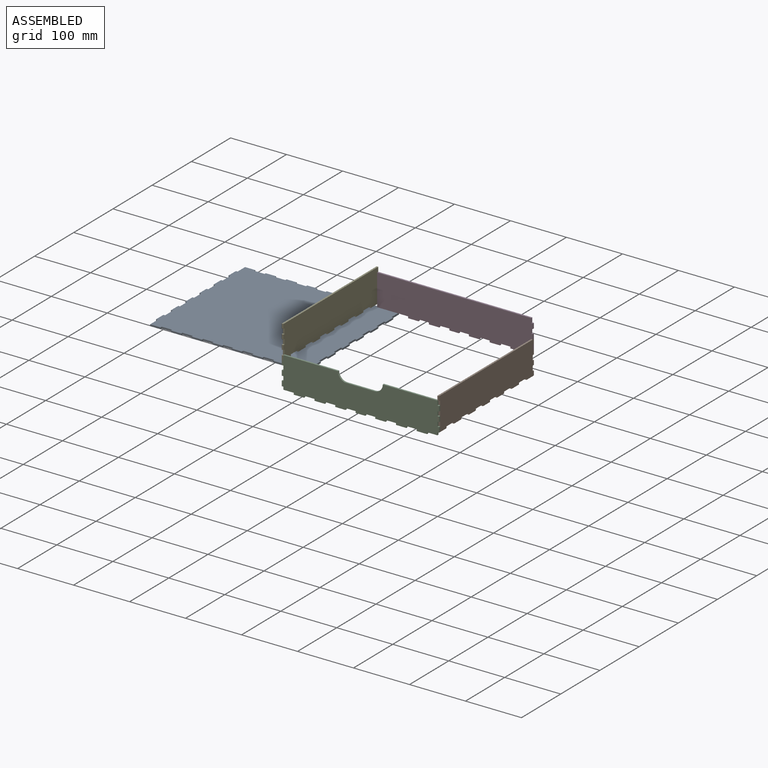
[diagram: assembled view]
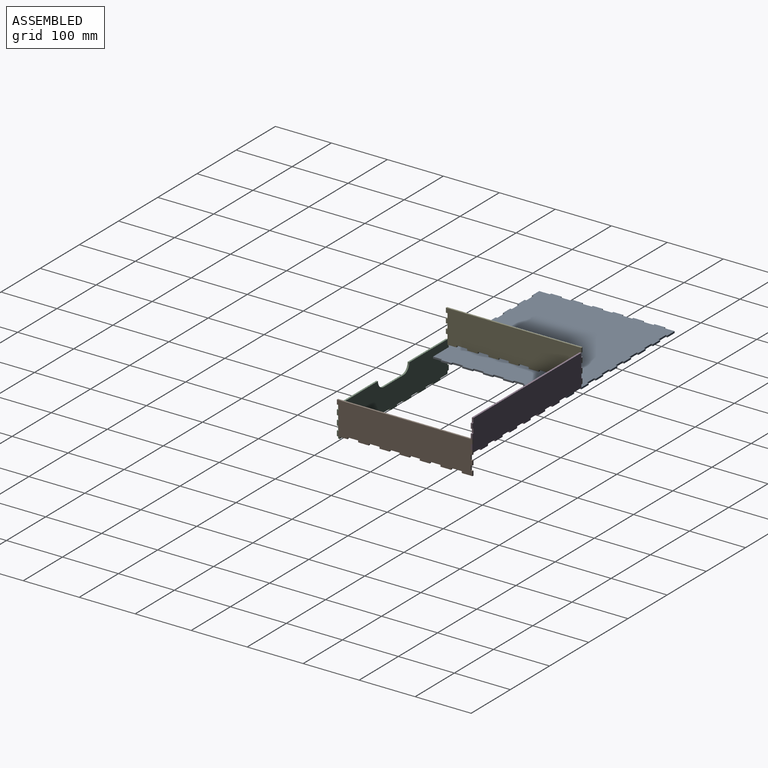
[diagram: assembled view, second angle]
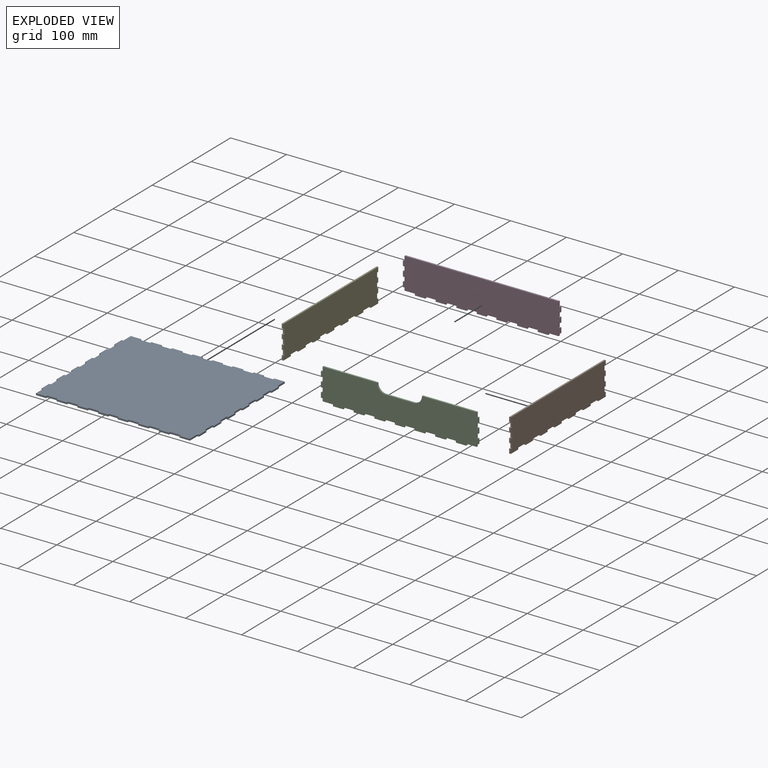
[diagram: exploded view]
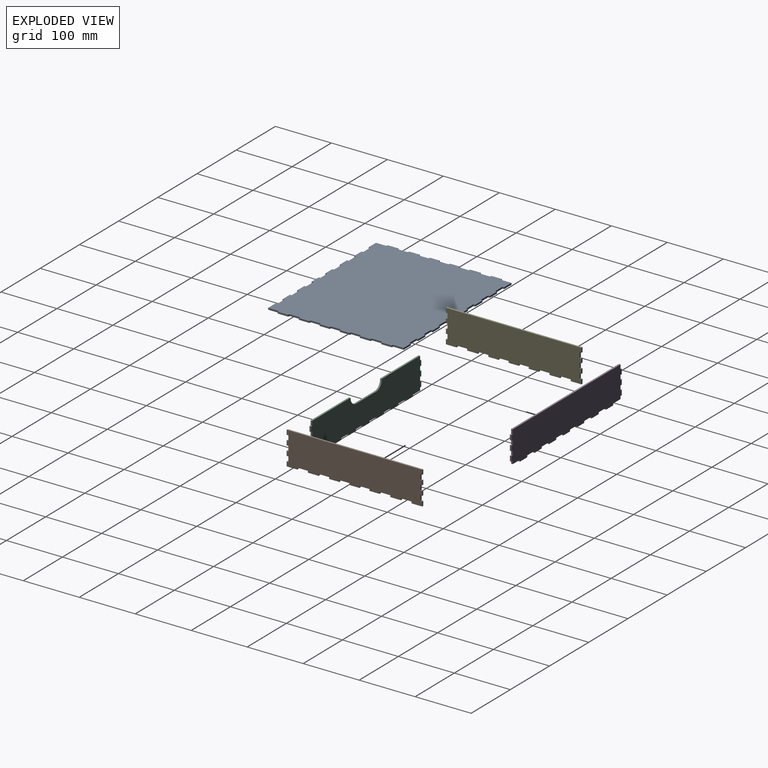
[diagram: exploded view, second angle]
ASSEMBLY  parts=5 mates=3
PART A: 110 faces, bbox 281x242x3 mm
  f0: plane 19x3mm, normal (-1,0,0), area 57mm2, adj f1,f107,f108,f109
  f1: plane 3x3mm, normal (0,1,0), area 9mm2, adj f0,f2,f108,f109
  f2: plane 19x3mm, normal (-1,0,0), area 57mm2, adj f1,f3,f108,f109
  f3: plane 3x3mm, normal (0,-1,0), area 9mm2, adj f2,f4,f108,f109
  f4: plane 19x3mm, normal (-1,0,0), area 57mm2, adj f3,f5,f108,f109
  f5: plane 3x3mm, normal (0,1,0), area 9mm2, adj f4,f6,f108,f109
  f6: plane 19x3mm, normal (-1,0,0), area 57mm2, adj f5,f7,f108,f109
  f7: plane 3x3mm, normal (0,-1,0), area 9mm2, adj f6,f8,f108,f109
  f8: plane 18x3mm, normal (-1,0,0), area 54mm2, adj f7,f9,f108,f109
  f9: plane 3x3mm, normal (0,1,0), area 9mm2, adj f8,f10,f108,f109
  f10: plane 18x3mm, normal (-1,0,0), area 54mm2, adj f9,f11,f108,f109
  f11: plane 3x3mm, normal (0,-1,0), area 9mm2, adj f10,f12,f108,f109
  f12: plane 18x3mm, normal (-1,0,0), area 54mm2, adj f11,f13,f108,f109
  f13: plane 3x3mm, normal (0,1,0), area 9mm2, adj f12,f14,f108,f109
  f14: plane 18x3mm, normal (-1,0,0), area 54mm2, adj f13,f15,f108,f109
  f15: plane 3x3mm, normal (0,-1,0), area 9mm2, adj f14,f16,f108,f109
  f16: plane 18x3mm, normal (-1,0,0), area 54mm2, adj f15,f17,f108,f109
  f17: plane 3x3mm, normal (0,1,0), area 9mm2, adj f16,f18,f108,f109
  f18: plane 19x3mm, normal (-1,0,0), area 57mm2, adj f17,f19,f108,f109
  f19: plane 3x3mm, normal (0,-1,0), area 9mm2, adj f18,f20,f108,f109
  f20: plane 19x3mm, normal (-1,0,0), area 57mm2, adj f19,f21,f108,f109
  f21: plane 3x3mm, normal (0,1,0), area 9mm2, adj f20,f22,f108,f109
  f22: plane 19x3mm, normal (-1,0,0), area 57mm2, adj f21,f23,f108,f109
  f23: plane 3x3mm, normal (0,-1,0), area 9mm2, adj f22,f24,f108,f109
  f24: plane 19x3mm, normal (-1,0,0), area 57mm2, adj f23,f25,f108,f109
  f25: plane 18.5x3mm, normal (0,-1,0), area 55.5mm2, adj f24,f26,f108,f109
  f26: plane 3x3mm, normal (1,0,0), area 9mm2, adj f25,f27,f108,f109
  f27: plane 18.5x3mm, normal (0,-1,0), area 55.5mm2, adj f26,f28,f108,f109
  f28: plane 3x3mm, normal (-1,0,0), area 9mm2, adj f27,f29,f108,f109
  f29: plane 18.5x3mm, normal (0,-1,0), area 55.5mm2, adj f28,f30,f108,f109
  f30: plane 3x3mm, normal (1,0,0), area 9mm2, adj f29,f31,f108,f109
  f31: plane 18.5x3mm, normal (0,-1,0), area 55.5mm2, adj f30,f32,f108,f109
  f32: plane 3x3mm, normal (-1,0,0), area 9mm2, adj f31,f33,f108,f109
  f33: plane 18.5x3mm, normal (0,-1,0), area 55.5mm2, adj f32,f34,f108,f109
  f34: plane 3x3mm, normal (1,0,0), area 9mm2, adj f33,f35,f108,f109
  f35: plane 18.5x3mm, normal (0,-1,0), area 55.5mm2, adj f34,f36,f108,f109
  f36: plane 3x3mm, normal (-1,0,0), area 9mm2, adj f35,f37,f108,f109
  f37: plane 18x3mm, normal (0,-1,0), area 54mm2, adj f36,f38,f108,f109
  f38: plane 3x3mm, normal (1,0,0), area 9mm2, adj f37,f39,f108,f109
  f39: plane 17x3mm, normal (0,-1,0), area 51mm2, adj f38,f40,f108,f109
  f40: plane 3x3mm, normal (-1,0,0), area 9mm2, adj f39,f41,f108,f109
  f41: plane 18x3mm, normal (0,-1,0), area 54mm2, adj f40,f42,f108,f109
  f42: plane 3x3mm, normal (1,0,0), area 9mm2, adj f41,f43,f108,f109
  f43: plane 18.5x3mm, normal (0,-1,0), area 55.5mm2, adj f42,f44,f108,f109
  f44: plane 3x3mm, normal (-1,0,0), area 9mm2, adj f43,f45,f108,f109
  f45: plane 18.5x3mm, normal (0,-1,0), area 55.5mm2, adj f44,f46,f108,f109
  f46: plane 3x3mm, normal (1,0,0), area 9mm2, adj f45,f47,f108,f109
  f47: plane 18.5x3mm, normal (0,-1,0), area 55.5mm2, adj f46,f48,f108,f109
  f48: plane 3x3mm, normal (-1,0,0), area 9mm2, adj f47,f49,f108,f109
  f49: plane 18.5x3mm, normal (0,-1,0), area 55.5mm2, adj f48,f50,f108,f109
  f50: plane 3x3mm, normal (1,0,0), area 9mm2, adj f49,f51,f108,f109
  f51: plane 18.5x3mm, normal (0,-1,0), area 55.5mm2, adj f50,f52,f108,f109
  f52: plane 3x3mm, normal (-1,0,0), area 9mm2, adj f51,f53,f108,f109
  f53: plane 18.5x3mm, normal (0,-1,0), area 55.5mm2, adj f52,f54,f108,f109
  f54: plane 19x3mm, normal (1,0,0), area 57mm2, adj f53,f55,f108,f109
  f55: plane 3x3mm, normal (0,-1,0), area 9mm2, adj f54,f56,f108,f109
  f56: plane 19x3mm, normal (1,0,0), area 57mm2, adj f55,f57,f108,f109
  f57: plane 3x3mm, normal (0,1,0), area 9mm2, adj f56,f58,f108,f109
  f58: plane 19x3mm, normal (1,0,0), area 57mm2, adj f57,f59,f108,f109
  f59: plane 3x3mm, normal (0,-1,0), area 9mm2, adj f58,f60,f108,f109
  f60: plane 19x3mm, normal (1,0,0), area 57mm2, adj f59,f61,f108,f109
  f61: plane 3x3mm, normal (0,1,0), area 9mm2, adj f60,f62,f108,f109
  f62: plane 18x3mm, normal (1,0,0), area 54mm2, adj f61,f63,f108,f109
  f63: plane 3x3mm, normal (0,-1,0), area 9mm2, adj f62,f64,f108,f109
  f64: plane 18x3mm, normal (1,0,0), area 54mm2, adj f63,f65,f108,f109
  f65: plane 3x3mm, normal (0,1,0), area 9mm2, adj f64,f66,f108,f109
  f66: plane 18x3mm, normal (1,0,0), area 54mm2, adj f65,f67,f108,f109
  f67: plane 3x3mm, normal (0,-1,0), area 9mm2, adj f66,f68,f108,f109
  f68: plane 18x3mm, normal (1,0,0), area 54mm2, adj f67,f69,f108,f109
  f69: plane 3x3mm, normal (0,1,0), area 9mm2, adj f68,f70,f108,f109
  f70: plane 18x3mm, normal (1,0,0), area 54mm2, adj f69,f71,f108,f109
  f71: plane 3x3mm, normal (0,-1,0), area 9mm2, adj f70,f72,f108,f109
  f72: plane 19x3mm, normal (1,0,0), area 57mm2, adj f71,f73,f108,f109
  f73: plane 3x3mm, normal (0,1,0), area 9mm2, adj f72,f74,f108,f109
  f74: plane 19x3mm, normal (1,0,0), area 57mm2, adj f73,f75,f108,f109
  f75: plane 3x3mm, normal (0,-1,0), area 9mm2, adj f74,f76,f108,f109
  f76: plane 19x3mm, normal (1,0,0), area 57mm2, adj f75,f77,f108,f109
  f77: plane 3x3mm, normal (0,1,0), area 9mm2, adj f76,f78,f108,f109
  f78: plane 19x3mm, normal (1,0,0), area 57mm2, adj f77,f79,f108,f109
  f79: plane 18.5x3mm, normal (0,1,0), area 55.5mm2, adj f78,f80,f108,f109
  f80: plane 3x3mm, normal (-1,0,0), area 9mm2, adj f79,f81,f108,f109
  f81: plane 18.5x3mm, normal (0,1,0), area 55.5mm2, adj f80,f82,f108,f109
  f82: plane 3x3mm, normal (1,0,0), area 9mm2, adj f81,f83,f108,f109
  f83: plane 18.5x3mm, normal (0,1,0), area 55.5mm2, adj f82,f84,f108,f109
  f84: plane 3x3mm, normal (-1,0,0), area 9mm2, adj f83,f85,f108,f109
  f85: plane 18.5x3mm, normal (0,1,0), area 55.5mm2, adj f84,f86,f108,f109
  f86: plane 3x3mm, normal (1,0,0), area 9mm2, adj f85,f87,f108,f109
  f87: plane 18.5x3mm, normal (0,1,0), area 55.5mm2, adj f86,f88,f108,f109
  f88: plane 3x3mm, normal (-1,0,0), area 9mm2, adj f87,f89,f108,f109
  f89: plane 18.5x3mm, normal (0,1,0), area 55.5mm2, adj f88,f90,f108,f109
  f90: plane 3x3mm, normal (1,0,0), area 9mm2, adj f89,f91,f108,f109
  f91: plane 18x3mm, normal (0,1,0), area 54mm2, adj f90,f92,f108,f109
  f92: plane 3x3mm, normal (-1,0,0), area 9mm2, adj f91,f93,f108,f109
  f93: plane 17x3mm, normal (0,1,0), area 51mm2, adj f92,f94,f108,f109
  f94: plane 3x3mm, normal (1,0,0), area 9mm2, adj f93,f95,f108,f109
  f95: plane 18x3mm, normal (0,1,0), area 54mm2, adj f94,f96,f108,f109
  f96: plane 3x3mm, normal (-1,0,0), area 9mm2, adj f95,f97,f108,f109
  f97: plane 18.5x3mm, normal (0,1,0), area 55.5mm2, adj f96,f98,f108,f109
  f98: plane 3x3mm, normal (1,0,0), area 9mm2, adj f97,f99,f108,f109
  f99: plane 18.5x3mm, normal (0,1,0), area 55.5mm2, adj f98,f100,f108,f109
  f100: plane 3x3mm, normal (-1,0,0), area 9mm2, adj f99,f101,f108,f109
  f101: plane 18.5x3mm, normal (0,1,0), area 55.5mm2, adj f100,f102,f108,f109
  f102: plane 3x3mm, normal (1,0,0), area 9mm2, adj f101,f103,f108,f109
  f103: plane 18.5x3mm, normal (0,1,0), area 55.5mm2, adj f102,f104,f108,f109
  f104: plane 3x3mm, normal (-1,0,0), area 9mm2, adj f103,f105,f108,f109
  f105: plane 18.5x3mm, normal (0,1,0), area 55.5mm2, adj f104,f106,f108,f109
  f106: plane 3x3mm, normal (1,0,0), area 9mm2, adj f105,f107,f108,f109
  f107: plane 18.5x3mm, normal (0,1,0), area 55.5mm2, adj f0,f106,f108,f109
  f108: plane 281x242mm, normal (0,0,1), area 66454mm2, adj f0,f1,f2,f3,f4,f5,f6,f7
  f109: plane 281x242mm, normal (0,0,-1), area 66454mm2, adj f0,f1,f2,f3,f4,f5,f6,f7
PART B: 54 faces, bbox 3x242x59 mm
  f0: plane 19x3mm, normal (0,0,-1), area 57mm2, adj f1,f51,f52,f53
  f1: plane 3x3mm, normal (0,1,0), area 9mm2, adj f0,f2,f52,f53
  f2: plane 19x3mm, normal (0,0,-1), area 57mm2, adj f1,f3,f52,f53
  f3: plane 3x3mm, normal (0,-1,0), area 9mm2, adj f2,f4,f52,f53
  f4: plane 19x3mm, normal (0,0,-1), area 57mm2, adj f3,f5,f52,f53
  f5: plane 3x3mm, normal (0,1,0), area 9mm2, adj f4,f6,f52,f53
  f6: plane 19x3mm, normal (0,0,-1), area 57mm2, adj f5,f7,f52,f53
  f7: plane 3x3mm, normal (0,-1,0), area 9mm2, adj f6,f8,f52,f53
  f8: plane 18x3mm, normal (0,0,-1), area 54mm2, adj f7,f9,f52,f53
  f9: plane 3x3mm, normal (0,1,0), area 9mm2, adj f8,f10,f52,f53
  f10: plane 18x3mm, normal (0,0,-1), area 54mm2, adj f9,f11,f52,f53
  f11: plane 3x3mm, normal (0,-1,0), area 9mm2, adj f10,f12,f52,f53
  f12: plane 18x3mm, normal (0,0,-1), area 54mm2, adj f11,f13,f52,f53
  f13: plane 3x3mm, normal (0,1,0), area 9mm2, adj f12,f14,f52,f53
  f14: plane 18x3mm, normal (0,0,-1), area 54mm2, adj f13,f15,f52,f53
  f15: plane 3x3mm, normal (0,-1,0), area 9mm2, adj f14,f16,f52,f53
  f16: plane 18x3mm, normal (0,0,-1), area 54mm2, adj f15,f17,f52,f53
  f17: plane 3x3mm, normal (0,1,0), area 9mm2, adj f16,f18,f52,f53
  f18: plane 19x3mm, normal (0,0,-1), area 57mm2, adj f17,f19,f52,f53
  f19: plane 3x3mm, normal (0,-1,0), area 9mm2, adj f18,f20,f52,f53
  f20: plane 19x3mm, normal (0,0,-1), area 57mm2, adj f19,f21,f52,f53
  f21: plane 3x3mm, normal (0,1,0), area 9mm2, adj f20,f22,f52,f53
  f22: plane 19x3mm, normal (0,0,-1), area 57mm2, adj f21,f23,f52,f53
  f23: plane 3x3mm, normal (0,-1,0), area 9mm2, adj f22,f24,f52,f53
  f24: plane 19x3mm, normal (0,0,-1), area 57mm2, adj f23,f25,f52,f53
  f25: plane 8x3mm, normal (0,1,0), area 24mm2, adj f24,f26,f52,f53
  f26: plane 3x3mm, normal (0,0,1), area 9mm2, adj f25,f27,f52,f53
  f27: plane 9x3mm, normal (0,1,0), area 27mm2, adj f26,f28,f52,f53
  f28: plane 3x3mm, normal (0,0,-1), area 9mm2, adj f27,f29,f52,f53
  f29: plane 8x3mm, normal (0,1,0), area 24mm2, adj f28,f30,f52,f53
  f30: plane 3x3mm, normal (0,0,1), area 9mm2, adj f29,f31,f52,f53
  f31: plane 9x3mm, normal (0,1,0), area 27mm2, adj f30,f32,f52,f53
  f32: plane 3x3mm, normal (0,0,-1), area 9mm2, adj f31,f33,f52,f53
  f33: plane 8x3mm, normal (0,1,0), area 24mm2, adj f32,f34,f52,f53
  f34: plane 3x3mm, normal (0,0,1), area 9mm2, adj f33,f35,f52,f53
  f35: plane 9x3mm, normal (0,1,0), area 27mm2, adj f34,f36,f52,f53
  f36: plane 3x3mm, normal (0,0,-1), area 9mm2, adj f35,f37,f52,f53
  f37: plane 8x3mm, normal (0,1,0), area 24mm2, adj f36,f38,f52,f53
  f38: plane 242x3mm, normal (0,0,1), area 726mm2, adj f37,f39,f52,f53
  f39: plane 8x3mm, normal (0,-1,0), area 24mm2, adj f38,f40,f52,f53
  f40: plane 3x3mm, normal (0,0,-1), area 9mm2, adj f39,f41,f52,f53
  f41: plane 9x3mm, normal (0,-1,0), area 27mm2, adj f40,f42,f52,f53
  f42: plane 3x3mm, normal (0,0,1), area 9mm2, adj f41,f43,f52,f53
  f43: plane 8x3mm, normal (0,-1,0), area 24mm2, adj f42,f44,f52,f53
  f44: plane 3x3mm, normal (0,0,-1), area 9mm2, adj f43,f45,f52,f53
  f45: plane 9x3mm, normal (0,-1,0), area 27mm2, adj f44,f46,f52,f53
  f46: plane 3x3mm, normal (0,0,1), area 9mm2, adj f45,f47,f52,f53
  f47: plane 8x3mm, normal (0,-1,0), area 24mm2, adj f46,f48,f52,f53
  f48: plane 3x3mm, normal (0,0,-1), area 9mm2, adj f47,f49,f52,f53
  f49: plane 9x3mm, normal (0,-1,0), area 27mm2, adj f48,f50,f52,f53
  f50: plane 3x3mm, normal (0,0,1), area 9mm2, adj f49,f51,f52,f53
  f51: plane 8x3mm, normal (0,-1,0), area 24mm2, adj f0,f50,f52,f53
  f52: plane 242x59mm, normal (1,0,0), area 13780mm2, adj f0,f1,f2,f3,f4,f5,f6,f7
  f53: plane 242x59mm, normal (-1,0,0), area 13780mm2, adj f0,f1,f2,f3,f4,f5,f6,f7
PART C: 62 faces, bbox 281x3x59 mm
  f0: plane 3x3mm, normal (0,0,-1), area 9mm2, adj f1,f59,f60,f61
  f1: plane 9x3mm, normal (1,0,0), area 27mm2, adj f0,f2,f60,f61
  f2: plane 3x3mm, normal (0,0,1), area 9mm2, adj f1,f3,f60,f61
  f3: plane 8x3mm, normal (1,0,0), area 24mm2, adj f2,f4,f60,f61
  f4: plane 3x3mm, normal (0,0,-1), area 9mm2, adj f3,f5,f60,f61
  f5: plane 9x3mm, normal (1,0,0), area 27mm2, adj f4,f6,f60,f61
  f6: plane 3x3mm, normal (0,0,1), area 9mm2, adj f5,f7,f60,f61
  f7: plane 8x3mm, normal (1,0,0), area 24mm2, adj f6,f8,f60,f61
  f8: plane 97.5x3mm, normal (0,0,1), area 292.5mm2, adj f7,f9,f60,f61
  f9: cylinder r=15mm len=15mm, axis (0,-1,0), area 70.7mm2, adj f8,f10,f60,f61
  f10: plane 50x3mm, normal (0,0,1), area 150mm2, adj f9,f11,f60,f61
  f11: cylinder r=15mm len=15mm, axis (0,-1,0), area 70.7mm2, adj f10,f12,f60,f61
  f12: plane 97.5x3mm, normal (0,0,1), area 292.5mm2, adj f11,f13,f60,f61
  f13: plane 8x3mm, normal (-1,0,0), area 24mm2, adj f12,f14,f60,f61
  f14: plane 3x3mm, normal (0,0,1), area 9mm2, adj f13,f15,f60,f61
  f15: plane 9x3mm, normal (-1,0,0), area 27mm2, adj f14,f16,f60,f61
  f16: plane 3x3mm, normal (0,0,-1), area 9mm2, adj f15,f17,f60,f61
  f17: plane 8x3mm, normal (-1,0,0), area 24mm2, adj f16,f18,f60,f61
  f18: plane 3x3mm, normal (0,0,1), area 9mm2, adj f17,f19,f60,f61
  f19: plane 9x3mm, normal (-1,0,0), area 27mm2, adj f18,f20,f60,f61
  f20: plane 3x3mm, normal (0,0,-1), area 9mm2, adj f19,f21,f60,f61
  f21: plane 8x3mm, normal (-1,0,0), area 24mm2, adj f20,f22,f60,f61
  f22: plane 3x3mm, normal (0,0,1), area 9mm2, adj f21,f23,f60,f61
  f23: plane 9x3mm, normal (-1,0,0), area 27mm2, adj f22,f24,f60,f61
  f24: plane 3x3mm, normal (0,0,-1), area 9mm2, adj f23,f25,f60,f61
  f25: plane 5x3mm, normal (-1,0,0), area 15mm2, adj f24,f26,f60,f61
  f26: plane 18.5x3mm, normal (0,0,-1), area 55.5mm2, adj f25,f27,f60,f61
  f27: plane 3x3mm, normal (-1,0,0), area 9mm2, adj f26,f28,f60,f61
  f28: plane 18.5x3mm, normal (0,0,-1), area 55.5mm2, adj f27,f29,f60,f61
  f29: plane 3x3mm, normal (1,0,0), area 9mm2, adj f28,f30,f60,f61
  f30: plane 18.5x3mm, normal (0,0,-1), area 55.5mm2, adj f29,f31,f60,f61
  f31: plane 3x3mm, normal (-1,0,0), area 9mm2, adj f30,f32,f60,f61
  f32: plane 18.5x3mm, normal (0,0,-1), area 55.5mm2, adj f31,f33,f60,f61
  f33: plane 3x3mm, normal (1,0,0), area 9mm2, adj f32,f34,f60,f61
  f34: plane 18.5x3mm, normal (0,0,-1), area 55.5mm2, adj f33,f35,f60,f61
  f35: plane 3x3mm, normal (-1,0,0), area 9mm2, adj f34,f36,f60,f61
  f36: plane 18.5x3mm, normal (0,0,-1), area 55.5mm2, adj f35,f37,f60,f61
  f37: plane 3x3mm, normal (1,0,0), area 9mm2, adj f36,f38,f60,f61
  f38: plane 18x3mm, normal (0,0,-1), area 54mm2, adj f37,f39,f60,f61
  f39: plane 3x3mm, normal (-1,0,0), area 9mm2, adj f38,f40,f60,f61
  f40: plane 17x3mm, normal (0,0,-1), area 51mm2, adj f39,f41,f60,f61
  f41: plane 3x3mm, normal (1,0,0), area 9mm2, adj f40,f42,f60,f61
  f42: plane 18x3mm, normal (0,0,-1), area 54mm2, adj f41,f43,f60,f61
  f43: plane 3x3mm, normal (-1,0,0), area 9mm2, adj f42,f44,f60,f61
  f44: plane 18.5x3mm, normal (0,0,-1), area 55.5mm2, adj f43,f45,f60,f61
  f45: plane 3x3mm, normal (1,0,0), area 9mm2, adj f44,f46,f60,f61
  f46: plane 18.5x3mm, normal (0,0,-1), area 55.5mm2, adj f45,f47,f60,f61
  f47: plane 3x3mm, normal (-1,0,0), area 9mm2, adj f46,f48,f60,f61
  f48: plane 18.5x3mm, normal (0,0,-1), area 55.5mm2, adj f47,f49,f60,f61
  f49: plane 3x3mm, normal (1,0,0), area 9mm2, adj f48,f50,f60,f61
  f50: plane 18.5x3mm, normal (0,0,-1), area 55.5mm2, adj f49,f51,f60,f61
  f51: plane 3x3mm, normal (-1,0,0), area 9mm2, adj f50,f52,f60,f61
  f52: plane 18.5x3mm, normal (0,0,-1), area 55.5mm2, adj f51,f53,f60,f61
  f53: plane 3x3mm, normal (1,0,0), area 9mm2, adj f52,f54,f60,f61
  f54: plane 18.5x3mm, normal (0,0,-1), area 55.5mm2, adj f53,f55,f60,f61
  f55: plane 5x3mm, normal (1,0,0), area 15mm2, adj f54,f56,f60,f61
  f56: plane 3x3mm, normal (0,0,-1), area 9mm2, adj f55,f57,f60,f61
  f57: plane 9x3mm, normal (1,0,0), area 27mm2, adj f56,f58,f60,f61
  f58: plane 3x3mm, normal (0,0,1), area 9mm2, adj f57,f59,f60,f61
  f59: plane 8x3mm, normal (1,0,0), area 24mm2, adj f0,f58,f60,f61
  f60: plane 281x59mm, normal (0,-1,0), area 14842.6mm2, adj f0,f1,f2,f3,f4,f5,f6,f7
  f61: plane 281x59mm, normal (0,1,0), area 14842.6mm2, adj f0,f1,f2,f3,f4,f5,f6,f7
PART D: 58 faces, bbox 281x3x59 mm
  f0: plane 3x3mm, normal (0,0,1), area 9mm2, adj f1,f55,f56,f57
  f1: plane 8x3mm, normal (1,0,0), area 24mm2, adj f0,f2,f56,f57
  f2: plane 3x3mm, normal (0,0,-1), area 9mm2, adj f1,f3,f56,f57
  f3: plane 9x3mm, normal (1,0,0), area 27mm2, adj f2,f4,f56,f57
  f4: plane 3x3mm, normal (0,0,1), area 9mm2, adj f3,f5,f56,f57
  f5: plane 8x3mm, normal (1,0,0), area 24mm2, adj f4,f6,f56,f57
  f6: plane 3x3mm, normal (0,0,-1), area 9mm2, adj f5,f7,f56,f57
  f7: plane 9x3mm, normal (1,0,0), area 27mm2, adj f6,f8,f56,f57
  f8: plane 3x3mm, normal (0,0,1), area 9mm2, adj f7,f9,f56,f57
  f9: plane 8x3mm, normal (1,0,0), area 24mm2, adj f8,f10,f56,f57
  f10: plane 275x3mm, normal (0,0,1), area 825mm2, adj f9,f11,f56,f57
  f11: plane 8x3mm, normal (-1,0,0), area 24mm2, adj f10,f12,f56,f57
  f12: plane 3x3mm, normal (0,0,1), area 9mm2, adj f11,f13,f56,f57
  f13: plane 9x3mm, normal (-1,0,0), area 27mm2, adj f12,f14,f56,f57
  f14: plane 3x3mm, normal (0,0,-1), area 9mm2, adj f13,f15,f56,f57
  f15: plane 8x3mm, normal (-1,0,0), area 24mm2, adj f14,f16,f56,f57
  f16: plane 3x3mm, normal (0,0,1), area 9mm2, adj f15,f17,f56,f57
  f17: plane 9x3mm, normal (-1,0,0), area 27mm2, adj f16,f18,f56,f57
  f18: plane 3x3mm, normal (0,0,-1), area 9mm2, adj f17,f19,f56,f57
  f19: plane 8x3mm, normal (-1,0,0), area 24mm2, adj f18,f20,f56,f57
  f20: plane 3x3mm, normal (0,0,1), area 9mm2, adj f19,f21,f56,f57
  f21: plane 9x3mm, normal (-1,0,0), area 27mm2, adj f20,f22,f56,f57
  f22: plane 3x3mm, normal (0,0,-1), area 9mm2, adj f21,f23,f56,f57
  f23: plane 5x3mm, normal (-1,0,0), area 15mm2, adj f22,f24,f56,f57
  f24: plane 18.5x3mm, normal (0,0,-1), area 55.5mm2, adj f23,f25,f56,f57
  f25: plane 3x3mm, normal (-1,0,0), area 9mm2, adj f24,f26,f56,f57
  f26: plane 18.5x3mm, normal (0,0,-1), area 55.5mm2, adj f25,f27,f56,f57
  f27: plane 3x3mm, normal (1,0,0), area 9mm2, adj f26,f28,f56,f57
  f28: plane 18.5x3mm, normal (0,0,-1), area 55.5mm2, adj f27,f29,f56,f57
  f29: plane 3x3mm, normal (-1,0,0), area 9mm2, adj f28,f30,f56,f57
  f30: plane 18.5x3mm, normal (0,0,-1), area 55.5mm2, adj f29,f31,f56,f57
  f31: plane 3x3mm, normal (1,0,0), area 9mm2, adj f30,f32,f56,f57
  f32: plane 18.5x3mm, normal (0,0,-1), area 55.5mm2, adj f31,f33,f56,f57
  f33: plane 3x3mm, normal (-1,0,0), area 9mm2, adj f32,f34,f56,f57
  f34: plane 18.5x3mm, normal (0,0,-1), area 55.5mm2, adj f33,f35,f56,f57
  f35: plane 3x3mm, normal (1,0,0), area 9mm2, adj f34,f36,f56,f57
  f36: plane 18x3mm, normal (0,0,-1), area 54mm2, adj f35,f37,f56,f57
  f37: plane 3x3mm, normal (-1,0,0), area 9mm2, adj f36,f38,f56,f57
  f38: plane 17x3mm, normal (0,0,-1), area 51mm2, adj f37,f39,f56,f57
  f39: plane 3x3mm, normal (1,0,0), area 9mm2, adj f38,f40,f56,f57
  f40: plane 18x3mm, normal (0,0,-1), area 54mm2, adj f39,f41,f56,f57
  f41: plane 3x3mm, normal (-1,0,0), area 9mm2, adj f40,f42,f56,f57
  f42: plane 18.5x3mm, normal (0,0,-1), area 55.5mm2, adj f41,f43,f56,f57
  f43: plane 3x3mm, normal (1,0,0), area 9mm2, adj f42,f44,f56,f57
  f44: plane 18.5x3mm, normal (0,0,-1), area 55.5mm2, adj f43,f45,f56,f57
  f45: plane 3x3mm, normal (-1,0,0), area 9mm2, adj f44,f46,f56,f57
  f46: plane 18.5x3mm, normal (0,0,-1), area 55.5mm2, adj f45,f47,f56,f57
  f47: plane 3x3mm, normal (1,0,0), area 9mm2, adj f46,f48,f56,f57
  f48: plane 18.5x3mm, normal (0,0,-1), area 55.5mm2, adj f47,f49,f56,f57
  f49: plane 3x3mm, normal (-1,0,0), area 9mm2, adj f48,f50,f56,f57
  f50: plane 18.5x3mm, normal (0,0,-1), area 55.5mm2, adj f49,f51,f56,f57
  f51: plane 3x3mm, normal (1,0,0), area 9mm2, adj f50,f52,f56,f57
  f52: plane 18.5x3mm, normal (0,0,-1), area 55.5mm2, adj f51,f53,f56,f57
  f53: plane 5x3mm, normal (1,0,0), area 15mm2, adj f52,f54,f56,f57
  f54: plane 3x3mm, normal (0,0,-1), area 9mm2, adj f53,f55,f56,f57
  f55: plane 9x3mm, normal (1,0,0), area 27mm2, adj f0,f54,f56,f57
  f56: plane 281x59mm, normal (0,-1,0), area 15946mm2, adj f0,f1,f2,f3,f4,f5,f6,f7
  f57: plane 281x59mm, normal (0,1,0), area 15946mm2, adj f0,f1,f2,f3,f4,f5,f6,f7
PART E: same geometry as B
PLACE A t=(-122.43,30.41,-75.61)mm
PLACE B t=(253.07,30.41,-80.11)mm
PLACE C t=(115.57,-87.59,-88.11)mm
PLACE D t=(115.57,151.41,-46.11)mm
PLACE E t=(-24.93,30.41,-38.11)mm
MATE fastened A.f79 <-> D.f57  axis (0,1,0) through (-3.43,151.41,-75.61)mm
MATE fastened E.f53 <-> D.f21  axis (-1,0,0) through (-24.93,151.41,-67.61)mm
MATE fastened B.f0 <-> C.f56  axis (0,0,1) through (256.07,-90.59,-109.61)mm
